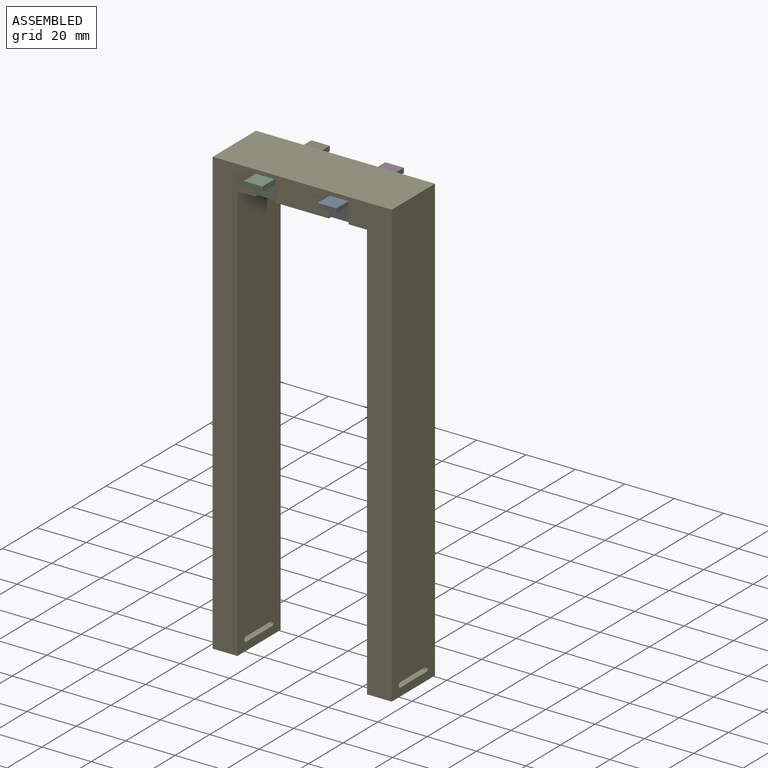
[diagram: assembled view]
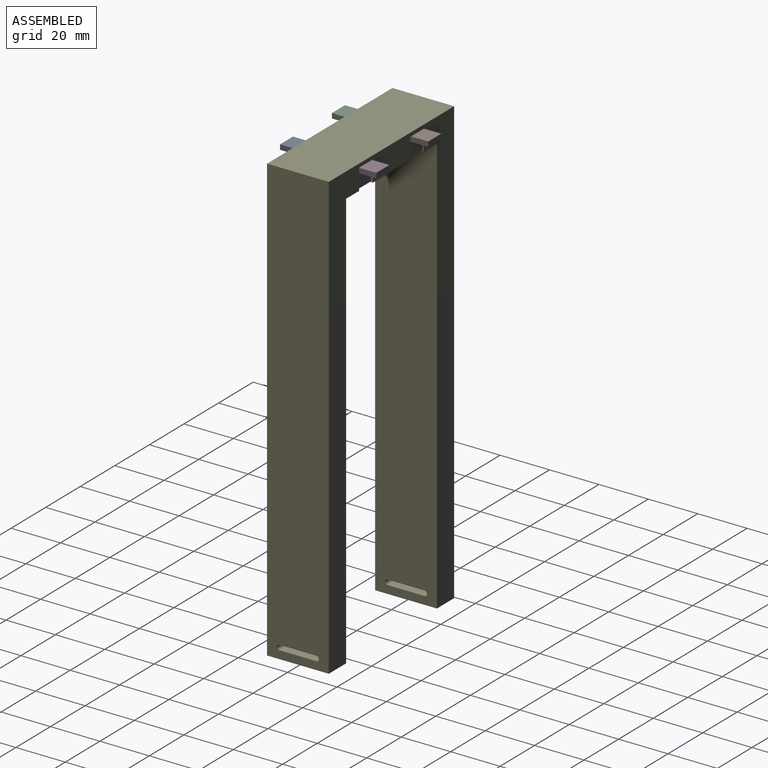
[diagram: assembled view, second angle]
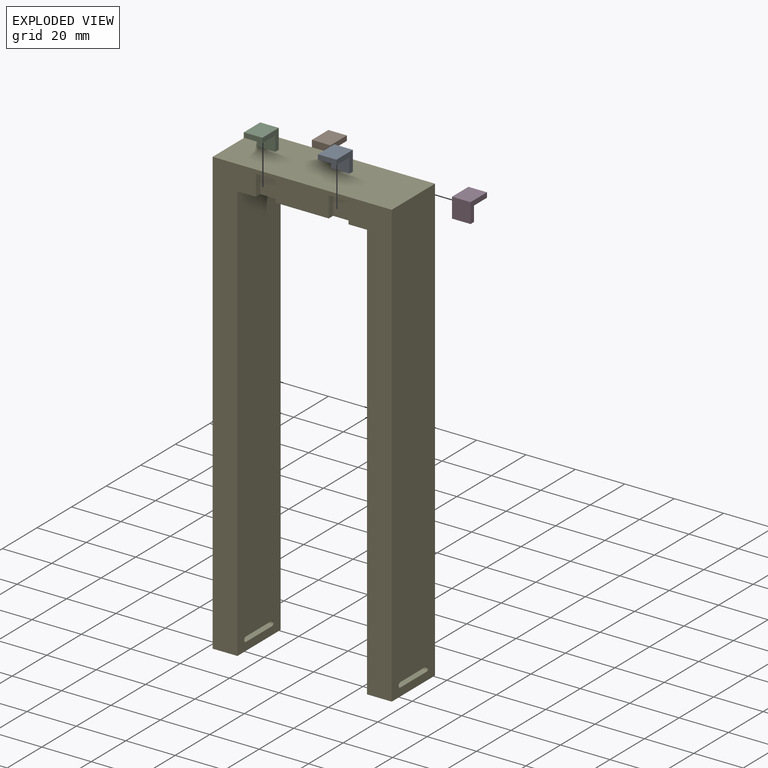
[diagram: exploded view]
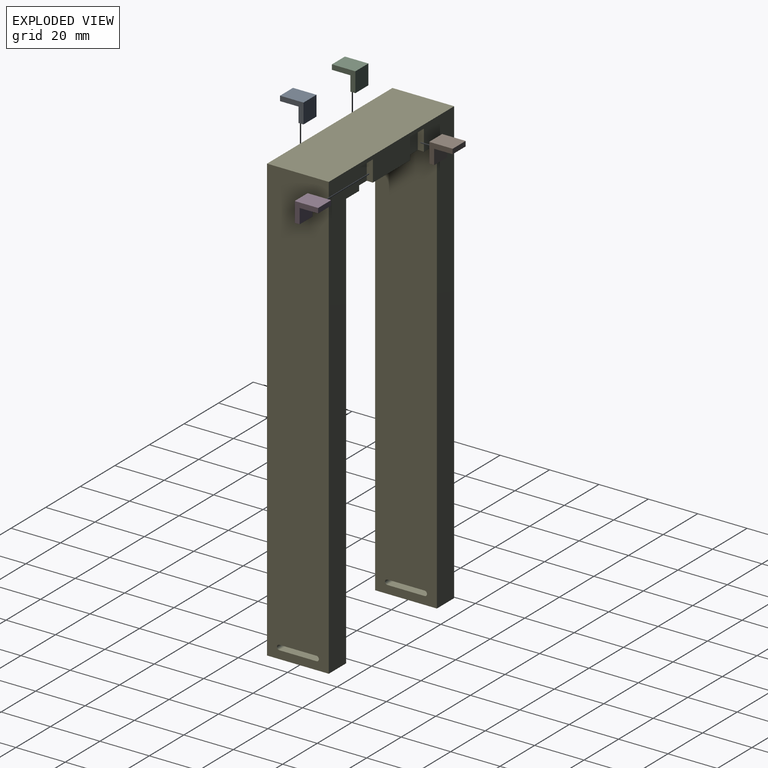
[diagram: exploded view, second angle]
ASSEMBLY  parts=5 mates=12
PART A: 8 faces, bbox 7.5x9.5x8 mm
  f0: plane 9.5x7.5mm, normal (0,0,1), area 71.2mm2, adj f1,f5,f6,f7
  f1: plane 7.5x2mm, normal (0,-1,0), area 15mm2, adj f0,f2,f6,f7
  f2: plane 7.5x7.5mm, normal (0,0,-1), area 56.2mm2, adj f1,f3,f6,f7
  f3: plane 7.5x6mm, normal (0,-1,0), area 45mm2, adj f2,f4,f6,f7
  f4: plane 7.5x2mm, normal (0,0,-1), area 15mm2, adj f3,f5,f6,f7
  f5: plane 8x7.5mm, normal (0,1,0), area 60mm2, adj f0,f4,f6,f7
  f6: plane 9.5x8mm, normal (1,0,0), area 31mm2, adj f0,f1,f2,f3,f4,f5
  f7: plane 9.5x8mm, normal (-1,0,0), area 31mm2, adj f0,f1,f2,f3,f4,f5
PART B: same geometry as A
PART C: same geometry as A
PART D: same geometry as A
PART E: 34 faces, bbox 72.5x25x180 mm
  f0: plane 180x72.5mm, normal (0,1,0), area 3989mm2, adj f2,f3,f4,f5,f6,f7,f8,f9
  f1: plane 180x72.5mm, normal (0,-1,0), area 3989mm2, adj f2,f3,f4,f5,f6,f7,f8,f9
  f2: plane 25x10mm, normal (0,0,-1), area 250mm2, adj f0,f1,f3,f9
  f3: plane 180x25mm, normal (1,0,0), area 4466.9mm2, adj f0,f1,f2,f4,f26,f27,f28,f29
  f4: plane 72.5x25mm, normal (0,0,1), area 1812.5mm2, adj f0,f1,f3,f5
  f5: plane 180x25mm, normal (-1,0,0), area 4466.9mm2, adj f0,f1,f4,f6,f30,f31,f32,f33
  f6: plane 25x10mm, normal (0,0,-1), area 250mm2, adj f0,f1,f5,f7
  f7: plane 170x25mm, normal (1,0,0), area 4216.9mm2, adj f0,f1,f6,f8,f30,f31,f32,f33
  f8: plane 52.5x25mm, normal (0,0,-1), area 1232.5mm2, adj f0,f1,f7,f9,f10,f11,f13,f14
  f9: plane 170x25mm, normal (-1,0,0), area 4216.9mm2, adj f0,f1,f2,f8,f26,f27,f28,f29
  f10: plane 8.5x2.5mm, normal (1,0,0), area 21.2mm2, adj f1,f8,f12,f13
  f11: plane 8.5x2.5mm, normal (-1,0,0), area 21.2mm2, adj f1,f8,f12,f13
  f12: plane 8x2.5mm, normal (0,0,-1), area 20mm2, adj f1,f10,f11,f13
  f13: plane 8.5x8mm, normal (0,-1,0), area 68mm2, adj f8,f10,f11,f12
  f14: plane 8.5x2.5mm, normal (1,0,0), area 21.2mm2, adj f1,f8,f16,f17
  f15: plane 8.5x2.5mm, normal (-1,0,0), area 21.2mm2, adj f1,f8,f16,f17
  f16: plane 8x2.5mm, normal (0,0,-1), area 20mm2, adj f1,f14,f15,f17
  f17: plane 8.5x8mm, normal (0,-1,0), area 68mm2, adj f8,f14,f15,f16
  f18: plane 8.5x2.5mm, normal (1,0,0), area 21.2mm2, adj f0,f8,f19,f21
  f19: plane 8x2.5mm, normal (0,0,-1), area 20mm2, adj f0,f18,f20,f21
  f20: plane 8.5x2.5mm, normal (-1,0,0), area 21.2mm2, adj f0,f8,f19,f21
  f21: plane 8.5x8mm, normal (0,1,0), area 68mm2, adj f8,f18,f19,f20
  f22: plane 8.5x2.5mm, normal (1,0,0), area 21.2mm2, adj f0,f8,f23,f25
  f23: plane 8x2.5mm, normal (0,0,-1), area 20mm2, adj f0,f22,f24,f25
  f24: plane 8.5x2.5mm, normal (-1,0,0), area 21.2mm2, adj f0,f8,f23,f25
  f25: plane 8.5x8mm, normal (0,1,0), area 68mm2, adj f8,f22,f23,f24
  f26: cylinder r=1mm len=10mm, axis (-1,0,0), area 31.4mm2, adj f3,f9,f27,f29
  f27: plane 15x10mm, normal (0,0,1), area 150mm2, adj f3,f9,f26,f28
  f28: cylinder r=1mm len=10mm, axis (-1,0,0), area 31.4mm2, adj f3,f9,f27,f29
  f29: plane 15x10mm, normal (0,0,-1), area 150mm2, adj f3,f9,f26,f28
  f30: plane 15x10mm, normal (0,0,-1), area 150mm2, adj f5,f7,f31,f33
  f31: cylinder r=1mm len=10mm, axis (-1,0,0), area 31.4mm2, adj f5,f7,f30,f32
  f32: plane 15x10mm, normal (0,0,1), area 150mm2, adj f5,f7,f31,f33
  f33: cylinder r=1mm len=10mm, axis (-1,0,0), area 31.4mm2, adj f5,f7,f30,f32
PLACE A t=(-106.68,52.98,145.15)mm
PLACE B rot(axis=(0,0,1),180deg) t=(-129.18,-86.96,145.15)mm
PLACE C t=(-136.68,52.98,145.15)mm
PLACE D rot(axis=(0,0,1),180deg) t=(-99.18,-86.96,145.15)mm
PLACE E t=(21.53,-4.49,-15.83)mm
MATE planar C.f0 <-> E.f16  axis (0,0,1) through (-132.93,-31.74,187.67)mm
MATE planar C.f7 <-> E.f14  axis (-1,0,0) through (-136.68,-30.29,185.13)mm
MATE planar A.f0 <-> E.f12  axis (0,0,1) through (-102.93,-31.74,187.67)mm
MATE planar D.f7 <-> E.f20  axis (1,0,0) through (-99.18,-3.69,185.13)mm
MATE planar B.f5 <-> E.f25  axis (0,-1,0) through (-132.93,-6.99,183.67)mm
MATE planar C.f5 <-> E.f17  axis (0,1,0) through (-132.93,-26.99,183.67)mm
MATE planar B.f6 <-> E.f22  axis (-1,0,0) through (-136.68,-3.69,185.13)mm
MATE planar D.f5 <-> E.f21  axis (0,-1,0) through (-102.93,-6.99,183.67)mm
MATE planar A.f5 <-> E.f13  axis (0,1,0) through (-102.93,-26.99,183.67)mm
MATE planar D.f0 <-> E.f19  axis (0,0,1) through (-102.93,-2.24,187.67)mm
MATE planar A.f6 <-> E.f11  axis (1,0,0) through (-99.18,-30.29,185.13)mm
MATE planar B.f0 <-> E.f23  axis (0,0,1) through (-132.93,-2.24,187.67)mm
